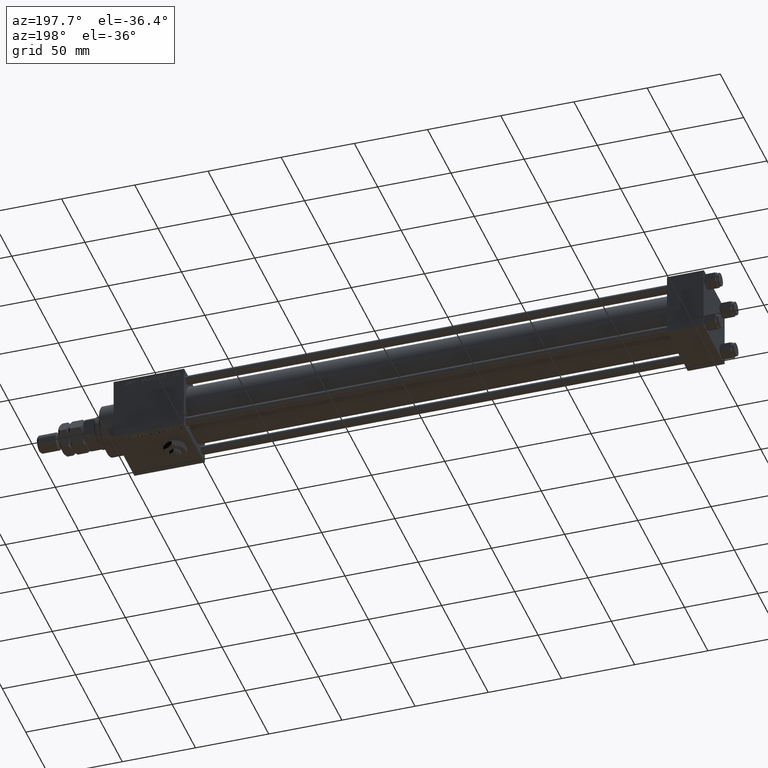
[diagram: clean part render]
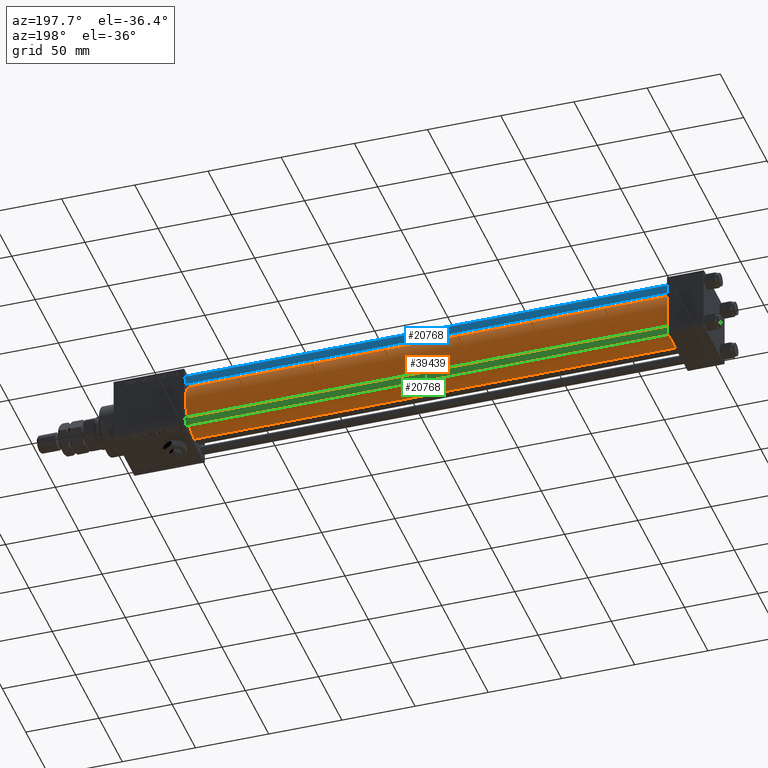
[diagram: same view with three faces highlighted in distinct colors, each labeled with its STEP entity id]
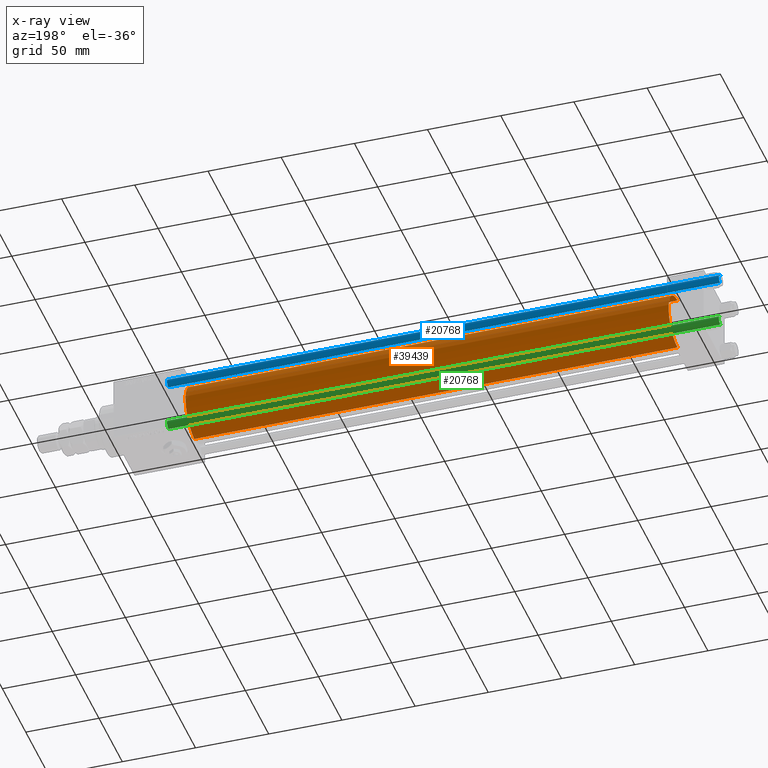
[diagram: x-ray of the same camera — body ghosted, the three highlighted faces saturated]
A machine part, auxiliary view with three faces highlighted in distinct colors.
The next image is the same camera in x-ray (body ghosted, the three faces saturated) — at least one of them is partly hidden behind the body in this view.
Their STEP definitions:

[orange] entity #39439 — the highlighted cylindrical surface (edge-blend (fillet) strip) has radius 19 mm, axis along (-1, -0, -0).
#6615 = AXIS2_PLACEMENT_3D ( 'NONE', #9547, #9812, #39257 ) ;
#8290 = CARTESIAN_POINT ( 'NONE',  ( 355.0000000000000568, -2.602085213965210642E-15, 19.00000000000000000 ) ) ;
#9547 = CARTESIAN_POINT ( 'NONE',  ( 355.0000000000000568, -2.602085213965210642E-15, 0.000000000000000000 ) ) ;
#9812 = DIRECTION ( 'NONE',  ( -1.000000000000000000, -0.000000000000000000, -0.000000000000000000 ) ) ;
#10349 = LINE ( 'NONE', #10877, #38786 ) ;
#10391 = EDGE_CURVE ( 'NONE', #16733, #49410, #49086, .T. ) ;
#10458 = ORIENTED_EDGE ( 'NONE', *, *, #10391, .T. ) ;
#10877 = CARTESIAN_POINT ( 'NONE',  ( 355.0000000000000568, -2.752562955852396712E-16, -19.00000000000000000 ) ) ;
#12301 = EDGE_CURVE ( 'NONE', #48052, #39880, #46523, .T. ) ;
#16733 = VERTEX_POINT ( 'NONE', #47637 ) ;
#22247 = FACE_OUTER_BOUND ( 'NONE', #39614, .T. ) ;
#23237 = AXIS2_PLACEMENT_3D ( 'NONE', #29474, #33530, #37075 ) ;
#24204 = ORIENTED_EDGE ( 'NONE', *, *, #45410, .T. ) ;
#27494 = AXIS2_PLACEMENT_3D ( 'NONE', #36096, #47731, #52044 ) ;
#29474 = CARTESIAN_POINT ( 'NONE',  ( 355.0000000000000568, -2.602085213965210642E-15, 0.000000000000000000 ) ) ;
#32593 = CARTESIAN_POINT ( 'NONE',  ( 25.00000000000002132, -2.602085213965210642E-15, 19.00000000000000000 ) ) ;
#32836 = ORIENTED_EDGE ( 'NONE', *, *, #33632, .F. ) ;
#33530 = DIRECTION ( 'NONE',  ( 1.000000000000000000, 0.000000000000000000, 0.000000000000000000 ) ) ;
#33632 = EDGE_CURVE ( 'NONE', #39880, #49410, #40216, .T. ) ;
#36096 = CARTESIAN_POINT ( 'NONE',  ( 25.00000000000002132, -2.602085213965210642E-15, 0.000000000000000000 ) ) ;
#37075 = DIRECTION ( 'NONE',  ( 0.000000000000000000, 0.000000000000000000, -1.000000000000000000 ) ) ;
#38786 = VECTOR ( 'NONE', #46818, 1000.000000000000000 ) ;
#39257 = DIRECTION ( 'NONE',  ( 0.000000000000000000, 0.000000000000000000, 1.000000000000000000 ) ) ;
#39439 = ADVANCED_FACE ( 'NONE', ( #22247 ), #43048, .T. ) ;
#39614 = EDGE_LOOP ( 'NONE', ( #52280, #24204, #10458, #32836 ) ) ;
#39880 = VERTEX_POINT ( 'NONE', #8290 ) ;
#40216 = LINE ( 'NONE', #48600, #46114 ) ;
#43048 = CYLINDRICAL_SURFACE ( 'NONE', #6615, 19.00000000000000000 ) ;
#44280 = DIRECTION ( 'NONE',  ( -1.000000000000000000, -0.000000000000000000, -0.000000000000000000 ) ) ;
#44318 = CARTESIAN_POINT ( 'NONE',  ( 355.0000000000000568, -2.752562955852396712E-16, -19.00000000000000000 ) ) ;
#45410 = EDGE_CURVE ( 'NONE', #48052, #16733, #10349, .T. ) ;
#46114 = VECTOR ( 'NONE', #44280, 1000.000000000000000 ) ;
#46523 = CIRCLE ( 'NONE', #23237, 19.00000000000000000 ) ;
#46818 = DIRECTION ( 'NONE',  ( -1.000000000000000000, -0.000000000000000000, -0.000000000000000000 ) ) ;
#47637 = CARTESIAN_POINT ( 'NONE',  ( 25.00000000000002132, -2.752562955852396712E-16, -19.00000000000000000 ) ) ;
#47731 = DIRECTION ( 'NONE',  ( 1.000000000000000000, -0.000000000000000000, 0.000000000000000000 ) ) ;
#48052 = VERTEX_POINT ( 'NONE', #44318 ) ;
#48600 = CARTESIAN_POINT ( 'NONE',  ( 355.0000000000000568, -2.602085213965210642E-15, 19.00000000000000000 ) ) ;
#49086 = CIRCLE ( 'NONE', #27494, 19.00000000000000000 ) ;
#49410 = VERTEX_POINT ( 'NONE', #32593 ) ;
#52044 = DIRECTION ( 'NONE',  ( 0.000000000000000000, 0.000000000000000000, 1.000000000000000000 ) ) ;
#52280 = ORIENTED_EDGE ( 'NONE', *, *, #12301, .F. ) ;

[blue] entity #20768 — the highlighted cylindrical surface (edge-blend (fillet) strip) has radius 3 mm, axis along (-1, 0, 0).
#687 = ORIENTED_EDGE ( 'NONE', *, *, #37951, .T. ) ;
#2184 = DIRECTION ( 'NONE',  ( 1.000000000000000000, 0.000000000000000000, 0.000000000000000000 ) ) ;
#3158 = DIRECTION ( 'NONE',  ( -0.000000000000000000, -0.000000000000000000, -1.000000000000000000 ) ) ;
#3514 = CARTESIAN_POINT ( 'NONE',  ( 3.000000000000000444, 3.673940397442060361E-16, 377.5000000000000000 ) ) ;
#5003 = CARTESIAN_POINT ( 'NONE',  ( -3.000000000000000444, 0.000000000000000000, 0.5000000000000004441 ) ) ;
#7192 = ORIENTED_EDGE ( 'NONE', *, *, #19119, .T. ) ;
#7723 = CIRCLE ( 'NONE', #37925, 3.000000000000000444 ) ;
#10587 = CIRCLE ( 'NONE', #40780, 3.000000000000000444 ) ;
#12404 = EDGE_CURVE ( 'NONE', #41348, #30667, #7723, .T. ) ;
#12696 = ORIENTED_EDGE ( 'NONE', *, *, #26302, .F. ) ;
#13289 = ORIENTED_EDGE ( 'NONE', *, *, #12404, .T. ) ;
#14882 = CARTESIAN_POINT ( 'NONE',  ( -3.000000000000000444, 0.000000000000000000, 378.0000000000000000 ) ) ;
#15305 = VERTEX_POINT ( 'NONE', #5003 ) ;
#19119 = EDGE_CURVE ( 'NONE', #34425, #15305, #10587, .T. ) ;
#20768 = ADVANCED_FACE ( 'NONE', ( #23169 ), #35859, .T. ) ;
#22755 = CARTESIAN_POINT ( 'NONE',  ( 0.000000000000000000, 0.000000000000000000, 0.5000000000000004441 ) ) ;
#23169 = FACE_OUTER_BOUND ( 'NONE', #48067, .T. ) ;
#26302 = EDGE_CURVE ( 'NONE', #41348, #15305, #27286, .T. ) ;
#27286 = LINE ( 'NONE', #14882, #47835 ) ;
#27789 = CARTESIAN_POINT ( 'NONE',  ( -3.000000000000000444, 0.000000000000000000, 377.5000000000000000 ) ) ;
#28061 = LINE ( 'NONE', #28595, #28173 ) ;
#28173 = VECTOR ( 'NONE', #44559, 1000.000000000000000 ) ;
#28595 = CARTESIAN_POINT ( 'NONE',  ( 3.000000000000000444, 3.673940397442060361E-16, 378.0000000000000000 ) ) ;
#28770 = AXIS2_PLACEMENT_3D ( 'NONE', #31790, #3158, #52340 ) ;
#30667 = VERTEX_POINT ( 'NONE', #3514 ) ;
#31790 = CARTESIAN_POINT ( 'NONE',  ( 0.000000000000000000, 0.000000000000000000, 378.0000000000000000 ) ) ;
#34425 = VERTEX_POINT ( 'NONE', #39426 ) ;
#34650 = DIRECTION ( 'NONE',  ( 1.000000000000000000, 0.000000000000000000, 0.000000000000000000 ) ) ;
#35859 = CYLINDRICAL_SURFACE ( 'NONE', #28770, 3.000000000000000444 ) ;
#37925 = AXIS2_PLACEMENT_3D ( 'NONE', #39202, #47040, #2184 ) ;
#37951 = EDGE_CURVE ( 'NONE', #30667, #34425, #28061, .T. ) ;
#39202 = CARTESIAN_POINT ( 'NONE',  ( 0.000000000000000000, 0.000000000000000000, 377.5000000000000000 ) ) ;
#39232 = DIRECTION ( 'NONE',  ( -0.000000000000000000, -0.000000000000000000, 1.000000000000000000 ) ) ;
#39426 = CARTESIAN_POINT ( 'NONE',  ( 3.000000000000000444, 3.673940397442060361E-16, 0.5000000000000004441 ) ) ;
#40780 = AXIS2_PLACEMENT_3D ( 'NONE', #22755, #39232, #34650 ) ;
#41348 = VERTEX_POINT ( 'NONE', #27789 ) ;
#44559 = DIRECTION ( 'NONE',  ( -0.000000000000000000, -0.000000000000000000, -1.000000000000000000 ) ) ;
#44586 = DIRECTION ( 'NONE',  ( -0.000000000000000000, -0.000000000000000000, -1.000000000000000000 ) ) ;
#47040 = DIRECTION ( 'NONE',  ( 0.000000000000000000, 0.000000000000000000, -1.000000000000000000 ) ) ;
#47835 = VECTOR ( 'NONE', #44586, 1000.000000000000000 ) ;
#48067 = EDGE_LOOP ( 'NONE', ( #13289, #687, #7192, #12696 ) ) ;
#52340 = DIRECTION ( 'NONE',  ( -1.000000000000000000, 0.000000000000000000, 0.000000000000000000 ) ) ;

[green] entity #20768 — the highlighted cylindrical surface (edge-blend (fillet) strip) has radius 3 mm, axis along (1, -0, 0).
#687 = ORIENTED_EDGE ( 'NONE', *, *, #37951, .T. ) ;
#2184 = DIRECTION ( 'NONE',  ( 1.000000000000000000, 0.000000000000000000, 0.000000000000000000 ) ) ;
#3158 = DIRECTION ( 'NONE',  ( -0.000000000000000000, -0.000000000000000000, -1.000000000000000000 ) ) ;
#3514 = CARTESIAN_POINT ( 'NONE',  ( 3.000000000000000444, 3.673940397442060361E-16, 377.5000000000000000 ) ) ;
#5003 = CARTESIAN_POINT ( 'NONE',  ( -3.000000000000000444, 0.000000000000000000, 0.5000000000000004441 ) ) ;
#7192 = ORIENTED_EDGE ( 'NONE', *, *, #19119, .T. ) ;
#7723 = CIRCLE ( 'NONE', #37925, 3.000000000000000444 ) ;
#10587 = CIRCLE ( 'NONE', #40780, 3.000000000000000444 ) ;
#12404 = EDGE_CURVE ( 'NONE', #41348, #30667, #7723, .T. ) ;
#12696 = ORIENTED_EDGE ( 'NONE', *, *, #26302, .F. ) ;
#13289 = ORIENTED_EDGE ( 'NONE', *, *, #12404, .T. ) ;
#14882 = CARTESIAN_POINT ( 'NONE',  ( -3.000000000000000444, 0.000000000000000000, 378.0000000000000000 ) ) ;
#15305 = VERTEX_POINT ( 'NONE', #5003 ) ;
#19119 = EDGE_CURVE ( 'NONE', #34425, #15305, #10587, .T. ) ;
#20768 = ADVANCED_FACE ( 'NONE', ( #23169 ), #35859, .T. ) ;
#22755 = CARTESIAN_POINT ( 'NONE',  ( 0.000000000000000000, 0.000000000000000000, 0.5000000000000004441 ) ) ;
#23169 = FACE_OUTER_BOUND ( 'NONE', #48067, .T. ) ;
#26302 = EDGE_CURVE ( 'NONE', #41348, #15305, #27286, .T. ) ;
#27286 = LINE ( 'NONE', #14882, #47835 ) ;
#27789 = CARTESIAN_POINT ( 'NONE',  ( -3.000000000000000444, 0.000000000000000000, 377.5000000000000000 ) ) ;
#28061 = LINE ( 'NONE', #28595, #28173 ) ;
#28173 = VECTOR ( 'NONE', #44559, 1000.000000000000000 ) ;
#28595 = CARTESIAN_POINT ( 'NONE',  ( 3.000000000000000444, 3.673940397442060361E-16, 378.0000000000000000 ) ) ;
#28770 = AXIS2_PLACEMENT_3D ( 'NONE', #31790, #3158, #52340 ) ;
#30667 = VERTEX_POINT ( 'NONE', #3514 ) ;
#31790 = CARTESIAN_POINT ( 'NONE',  ( 0.000000000000000000, 0.000000000000000000, 378.0000000000000000 ) ) ;
#34425 = VERTEX_POINT ( 'NONE', #39426 ) ;
#34650 = DIRECTION ( 'NONE',  ( 1.000000000000000000, 0.000000000000000000, 0.000000000000000000 ) ) ;
#35859 = CYLINDRICAL_SURFACE ( 'NONE', #28770, 3.000000000000000444 ) ;
#37925 = AXIS2_PLACEMENT_3D ( 'NONE', #39202, #47040, #2184 ) ;
#37951 = EDGE_CURVE ( 'NONE', #30667, #34425, #28061, .T. ) ;
#39202 = CARTESIAN_POINT ( 'NONE',  ( 0.000000000000000000, 0.000000000000000000, 377.5000000000000000 ) ) ;
#39232 = DIRECTION ( 'NONE',  ( -0.000000000000000000, -0.000000000000000000, 1.000000000000000000 ) ) ;
#39426 = CARTESIAN_POINT ( 'NONE',  ( 3.000000000000000444, 3.673940397442060361E-16, 0.5000000000000004441 ) ) ;
#40780 = AXIS2_PLACEMENT_3D ( 'NONE', #22755, #39232, #34650 ) ;
#41348 = VERTEX_POINT ( 'NONE', #27789 ) ;
#44559 = DIRECTION ( 'NONE',  ( -0.000000000000000000, -0.000000000000000000, -1.000000000000000000 ) ) ;
#44586 = DIRECTION ( 'NONE',  ( -0.000000000000000000, -0.000000000000000000, -1.000000000000000000 ) ) ;
#47040 = DIRECTION ( 'NONE',  ( 0.000000000000000000, 0.000000000000000000, -1.000000000000000000 ) ) ;
#47835 = VECTOR ( 'NONE', #44586, 1000.000000000000000 ) ;
#48067 = EDGE_LOOP ( 'NONE', ( #13289, #687, #7192, #12696 ) ) ;
#52340 = DIRECTION ( 'NONE',  ( -1.000000000000000000, 0.000000000000000000, 0.000000000000000000 ) ) ;